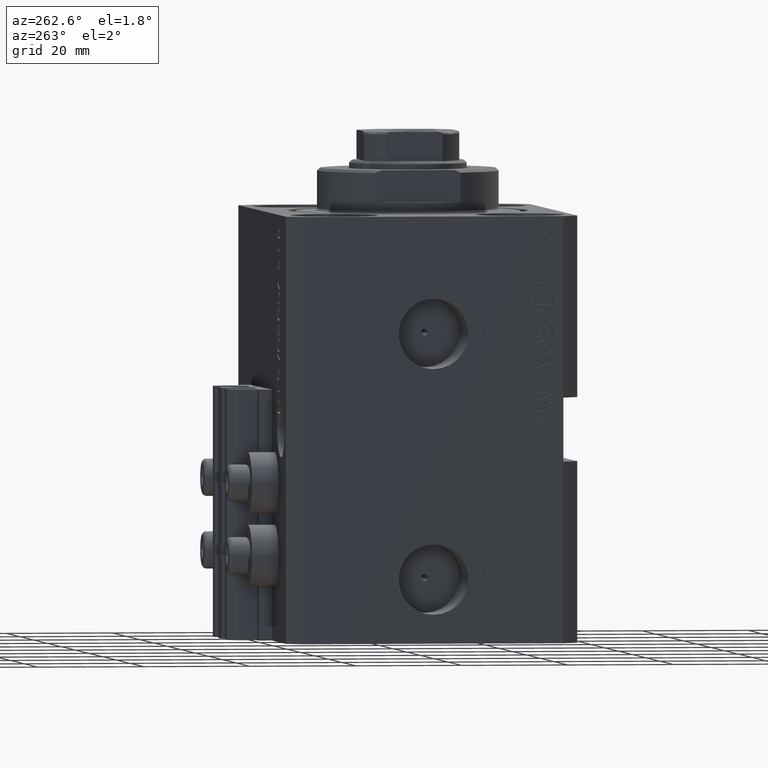
[diagram: clean part render]
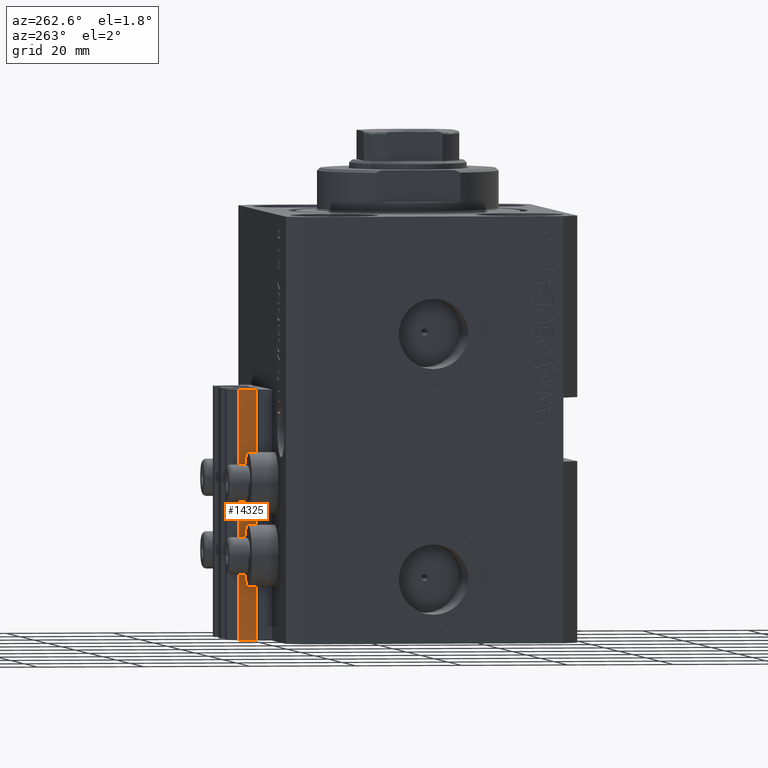
[diagram: same view with one face highlighted and labeled with its STEP entity id]
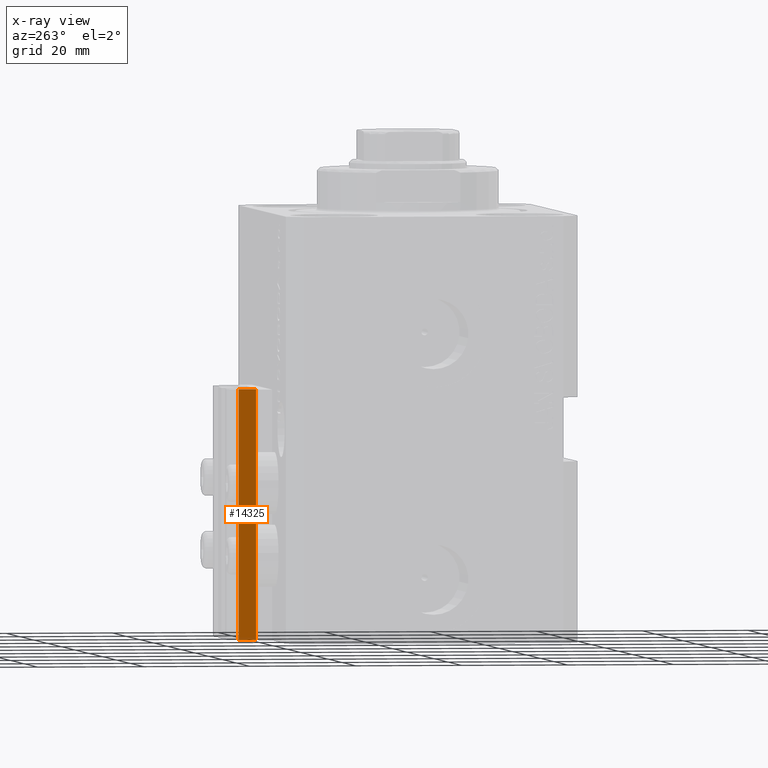
[diagram: x-ray of the same camera — body ghosted, the highlighted face saturated]
A machine part, auxiliary view. The second image highlights one B-rep face of the part: STEP entity #14325.
The next image is the same camera in x-ray: the body ghosted, the highlighted face saturated — about 0% of this face is hidden behind the body in this view.
In plain terms, the highlighted planar face has unit normal (-1, 0, 0).
Its self-contained STEP definition (entity closure, byte-faithful):
#3 = FACE_OUTER_BOUND ( 'NONE', #16614, .T. ) ;
#5907 = LINE ( 'NONE', #20288, #31324 ) ;
#6069 = LINE ( 'NONE', #46296, #18917 ) ;
#9083 = VECTOR ( 'NONE', #33400, 1000.000000000000000 ) ;
#9498 = CARTESIAN_POINT ( 'NONE',  ( -12.00000000000000000, 33.49999999999998579, -80.00000000000000000 ) ) ;
#9516 = DIRECTION ( 'NONE',  ( 0.000000000000000000, 0.000000000000000000, 1.000000000000000000 ) ) ;
#10557 = EDGE_CURVE ( 'NONE', #41575, #11569, #6069, .T. ) ;
#11449 = CARTESIAN_POINT ( 'NONE',  ( -12.00000000000000000, 30.19999999999999218, -80.00000000000000000 ) ) ;
#11569 = VERTEX_POINT ( 'NONE', #31064 ) ;
#12689 = VERTEX_POINT ( 'NONE', #9498 ) ;
#14159 = DIRECTION ( 'NONE',  ( 0.000000000000000000, 0.000000000000000000, 1.000000000000000000 ) ) ;
#14325 = ADVANCED_FACE ( 'NONE', ( #3 ), #25638, .T. ) ;
#15130 = ORIENTED_EDGE ( 'NONE', *, *, #10557, .T. ) ;
#15799 = VERTEX_POINT ( 'NONE', #31734 ) ;
#16614 = EDGE_LOOP ( 'NONE', ( #42370, #18666, #24590, #15130 ) ) ;
#17466 = EDGE_CURVE ( 'NONE', #12689, #15799, #5907, .T. ) ;
#18666 = ORIENTED_EDGE ( 'NONE', *, *, #17466, .F. ) ;
#18917 = VECTOR ( 'NONE', #32411, 1000.000000000000000 ) ;
#20288 = CARTESIAN_POINT ( 'NONE',  ( -12.00000000000000000, 33.49999999999998579, -80.00000000000000000 ) ) ;
#20695 = DIRECTION ( 'NONE',  ( 0.000000000000000000, -1.000000000000000000, 0.000000000000000000 ) ) ;
#24057 = LINE ( 'NONE', #42491, #45079 ) ;
#24590 = ORIENTED_EDGE ( 'NONE', *, *, #43968, .T. ) ;
#25638 = PLANE ( 'NONE',  #34332 ) ;
#28527 = DIRECTION ( 'NONE',  ( -1.000000000000000000, 0.000000000000000000, 0.000000000000000000 ) ) ;
#29109 = LINE ( 'NONE', #43943, #9083 ) ;
#31064 = CARTESIAN_POINT ( 'NONE',  ( -12.00000000000000000, 30.19999999999999218, -33.00000000000000000 ) ) ;
#31324 = VECTOR ( 'NONE', #9516, 1000.000000000000000 ) ;
#31734 = CARTESIAN_POINT ( 'NONE',  ( -12.00000000000000000, 33.49999999999998579, -33.00000000000000000 ) ) ;
#32411 = DIRECTION ( 'NONE',  ( 0.000000000000000000, 0.000000000000000000, 1.000000000000000000 ) ) ;
#33400 = DIRECTION ( 'NONE',  ( 0.000000000000000000, -1.000000000000000000, 0.000000000000000000 ) ) ;
#34332 = AXIS2_PLACEMENT_3D ( 'NONE', #42888, #28527, #14159 ) ;
#40391 = EDGE_CURVE ( 'NONE', #15799, #11569, #29109, .T. ) ;
#41575 = VERTEX_POINT ( 'NONE', #11449 ) ;
#42370 = ORIENTED_EDGE ( 'NONE', *, *, #40391, .F. ) ;
#42491 = CARTESIAN_POINT ( 'NONE',  ( -12.00000000000000000, 33.49999999999998579, -80.00000000000000000 ) ) ;
#42888 = CARTESIAN_POINT ( 'NONE',  ( -12.00000000000000000, 33.49999999999998579, -80.00000000000000000 ) ) ;
#43943 = CARTESIAN_POINT ( 'NONE',  ( -12.00000000000000000, 33.49999999999998579, -33.00000000000000000 ) ) ;
#43968 = EDGE_CURVE ( 'NONE', #12689, #41575, #24057, .T. ) ;
#45079 = VECTOR ( 'NONE', #20695, 1000.000000000000000 ) ;
#46296 = CARTESIAN_POINT ( 'NONE',  ( -12.00000000000000000, 30.19999999999999218, -80.00000000000000000 ) ) ;